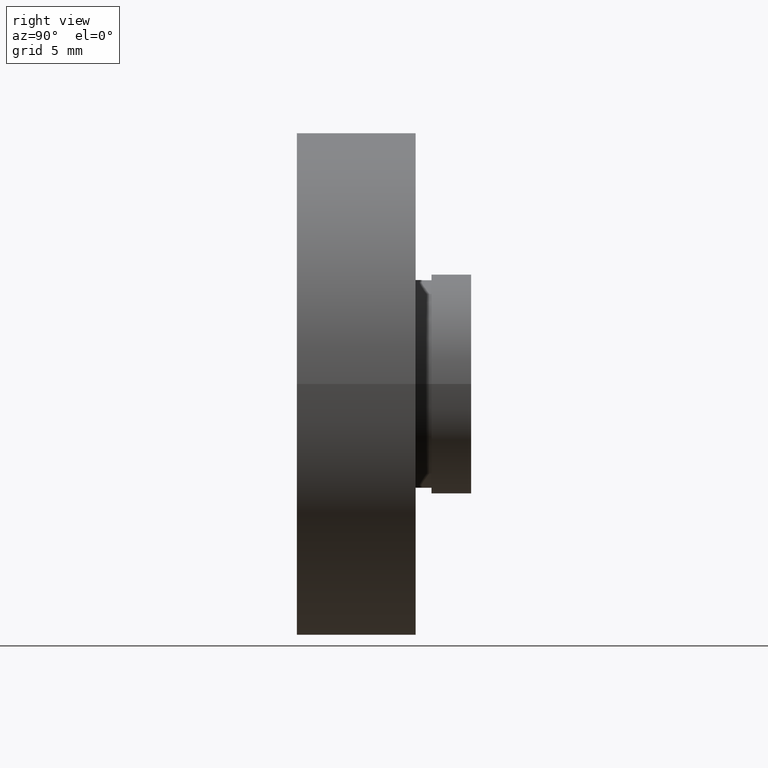
[diagram: clean part render]
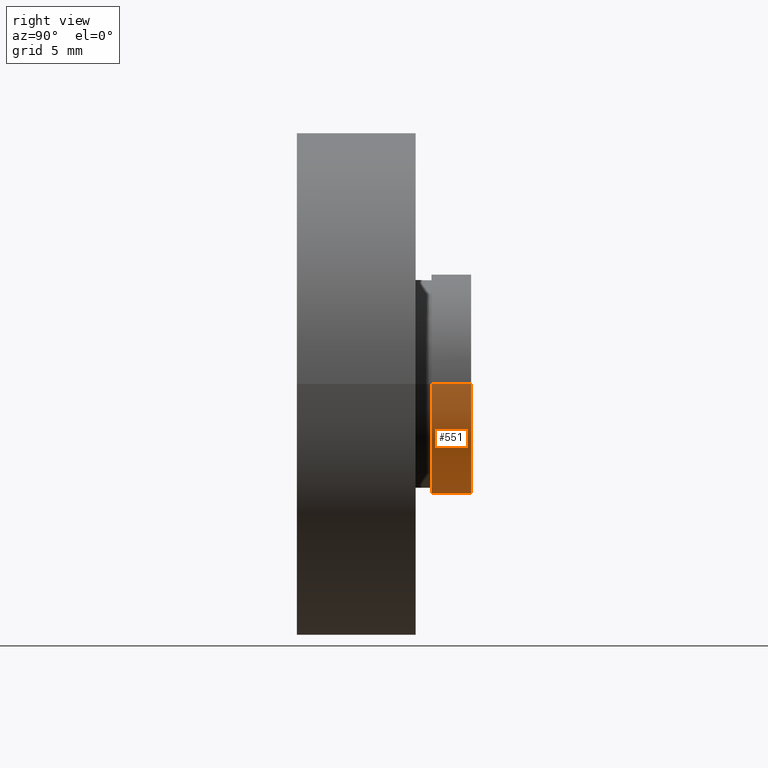
[diagram: same view with one face highlighted and labeled with its STEP entity id]
A machine part, right view. The second image highlights one B-rep face of the part: STEP entity #551.
In plain terms, the highlighted cylindrical surface (partial cylindrical patch) has radius 6.9 mm, axis along (-0, 1, -0).
Its self-contained STEP definition (entity closure, byte-faithful):
#8 = EDGE_CURVE ( 'NONE', #201, #610, #113, .T. ) ;
#13 = CARTESIAN_POINT ( 'NONE',  ( -6.900000000000000400, 10.99999999999999600, 0.0000000000000000000 ) ) ;
#36 = DIRECTION ( 'NONE',  ( -1.224646799147351000E-016, 1.000000000000000000, -0.0000000000000000000 ) ) ;
#37 = VERTEX_POINT ( 'NONE', #13 ) ;
#39 = FACE_OUTER_BOUND ( 'NONE', #603, .T. ) ;
#72 = DIRECTION ( 'NONE',  ( -1.224646799147351000E-016, 1.000000000000000000, -0.0000000000000000000 ) ) ;
#78 = CARTESIAN_POINT ( 'NONE',  ( 7.208293393765501500E-016, 10.99999999999999600, 0.0000000000000000000 ) ) ;
#88 = CARTESIAN_POINT ( 'NONE',  ( 0.0000000000000000000, 16.88601823708207700, 0.0000000000000000000 ) ) ;
#90 = CARTESIAN_POINT ( 'NONE',  ( -6.899999999999999500, 8.500000000000000000, 0.0000000000000000000 ) ) ;
#113 = CIRCLE ( 'NONE', #525, 6.900000000000000400 ) ;
#181 = ORIENTED_EDGE ( 'NONE', *, *, #8, .T. ) ;
#190 = ORIENTED_EDGE ( 'NONE', *, *, #514, .F. ) ;
#201 = VERTEX_POINT ( 'NONE', #548 ) ;
#206 = VERTEX_POINT ( 'NONE', #217 ) ;
#217 = CARTESIAN_POINT ( 'NONE',  ( 6.900000000000002100, 10.99999999999999600, 8.450062914116738600E-016 ) ) ;
#243 = DIRECTION ( 'NONE',  ( -1.224646799147351000E-016, 1.000000000000000000, -0.0000000000000000000 ) ) ;
#276 = VECTOR ( 'NONE', #72, 1000.000000000000000 ) ;
#287 = DIRECTION ( 'NONE',  ( -1.000000000000000000, 0.0000000000000000000, 0.0000000000000000000 ) ) ;
#292 = AXIS2_PLACEMENT_3D ( 'NONE', #88, #418, #413 ) ;
#307 = EDGE_CURVE ( 'NONE', #610, #37, #395, .T. ) ;
#357 = AXIS2_PLACEMENT_3D ( 'NONE', #78, #401, #517 ) ;
#395 = LINE ( 'NONE', #597, #276 ) ;
#401 = DIRECTION ( 'NONE',  ( -1.224646799147351000E-016, 1.000000000000000000, -0.0000000000000000000 ) ) ;
#402 = CIRCLE ( 'NONE', #357, 6.900000000000001200 ) ;
#413 = DIRECTION ( 'NONE',  ( -1.000000000000000000, 0.0000000000000000000, 0.0000000000000000000 ) ) ;
#418 = DIRECTION ( 'NONE',  ( -1.224646799147351000E-016, 1.000000000000000000, -0.0000000000000000000 ) ) ;
#452 = ORIENTED_EDGE ( 'NONE', *, *, #307, .T. ) ;
#463 = CARTESIAN_POINT ( 'NONE',  ( 6.900000000000001200, 16.88601823708207700, 8.450062914116738600E-016 ) ) ;
#503 = LINE ( 'NONE', #463, #623 ) ;
#514 = EDGE_CURVE ( 'NONE', #201, #206, #503, .T. ) ;
#517 = DIRECTION ( 'NONE',  ( -1.000000000000000000, 0.0000000000000000000, 0.0000000000000000000 ) ) ;
#525 = AXIS2_PLACEMENT_3D ( 'NONE', #526, #243, #287 ) ;
#526 = CARTESIAN_POINT ( 'NONE',  ( 1.026991039163387500E-015, 8.500000000000000000, 0.0000000000000000000 ) ) ;
#548 = CARTESIAN_POINT ( 'NONE',  ( 6.900000000000001200, 8.500000000000000000, 8.450062914116738600E-016 ) ) ;
#551 = ADVANCED_FACE ( 'NONE', ( #39 ), #607, .T. ) ;
#576 = ORIENTED_EDGE ( 'NONE', *, *, #578, .F. ) ;
#578 = EDGE_CURVE ( 'NONE', #206, #37, #402, .T. ) ;
#597 = CARTESIAN_POINT ( 'NONE',  ( -6.900000000000001200, 16.88601823708207700, 0.0000000000000000000 ) ) ;
#603 = EDGE_LOOP ( 'NONE', ( #190, #181, #452, #576 ) ) ;
#607 = CYLINDRICAL_SURFACE ( 'NONE', #292, 6.900000000000001200 ) ;
#610 = VERTEX_POINT ( 'NONE', #90 ) ;
#623 = VECTOR ( 'NONE', #36, 1000.000000000000000 ) ;